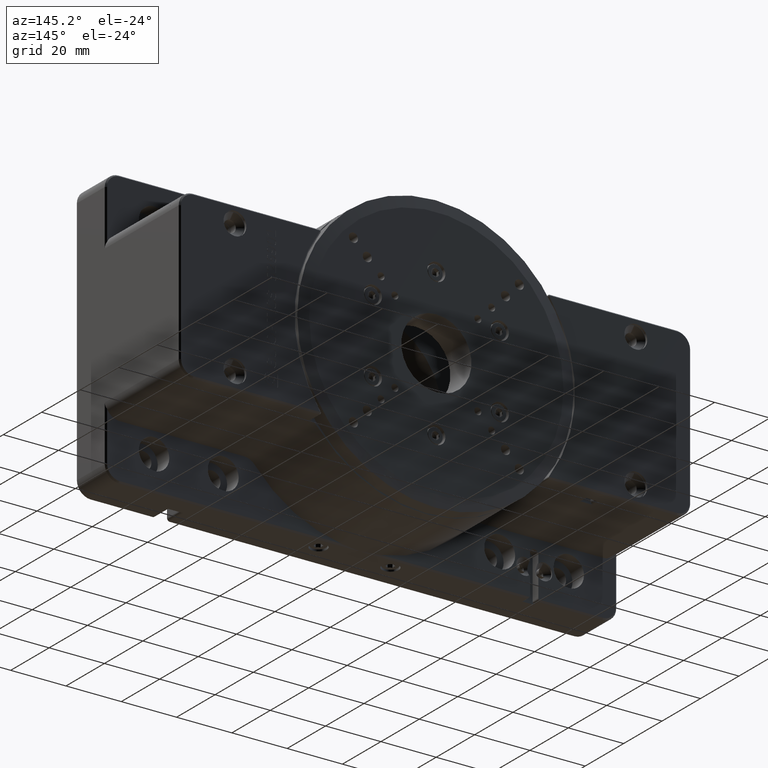
[diagram: clean part render]
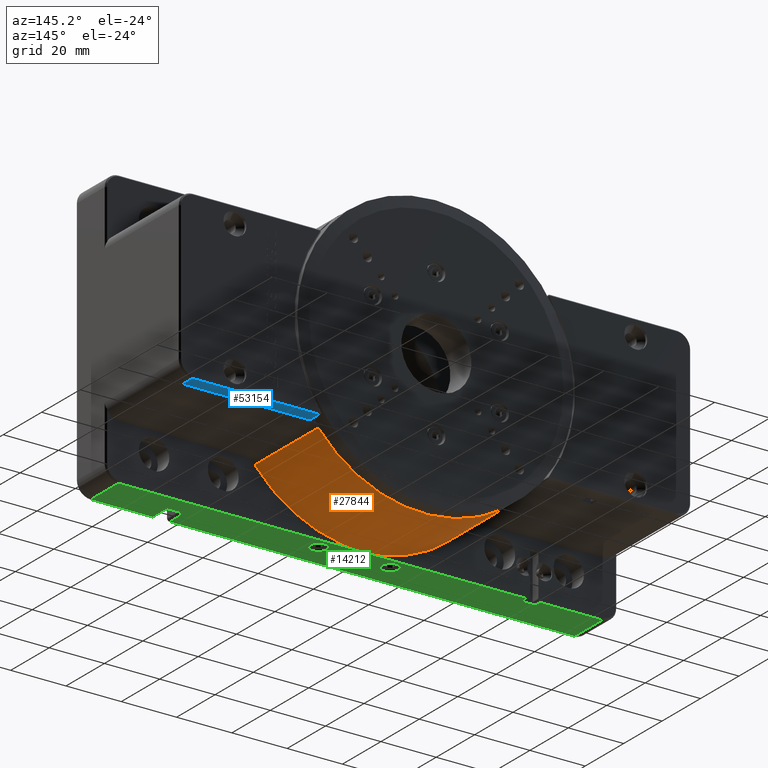
[diagram: same view with three faces highlighted in distinct colors, each labeled with its STEP entity id]
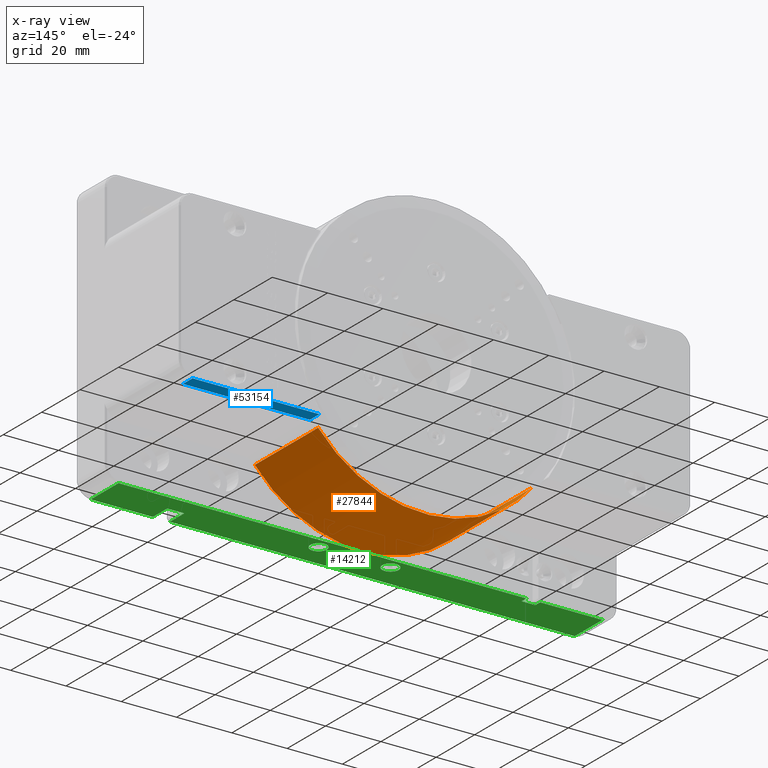
[diagram: x-ray of the same camera — body ghosted, the three highlighted faces saturated]
A machine part, auxiliary view with three faces highlighted in distinct colors.
The next image is the same camera in x-ray (body ghosted, the three faces saturated) — at least one of them is partly hidden behind the body in this view.
Their STEP definitions:

[orange] entity #27844 — the highlighted cylindrical surface (partial cylindrical patch) has radius 50 mm, axis along (0, 1, 0).
#1120 = CARTESIAN_POINT ( 'NONE',  ( -7.053367818820574600, -15.00000000161139500, -49.50000001289144100 ) ) ;
#1178 = CARTESIAN_POINT ( 'NONE',  ( -21.77756542581676400, -15.00000000000000200, -45.11353765567892500 ) ) ;
#2482 = CARTESIAN_POINT ( 'NONE',  ( 7.053367747179475300, -15.00000000094685900, -49.50000001535210700 ) ) ;
#2648 = CARTESIAN_POINT ( 'NONE',  ( 13.11374249056541600, -15.00000000000000200, -48.34794094492505700 ) ) ;
#2706 = CARTESIAN_POINT ( 'NONE',  ( 10.10373041385915200, -15.00000000000000500, -49.06534691049152700 ) ) ;
#2797 = CYLINDRICAL_SURFACE ( 'NONE', #34548, 50.00000000000000000 ) ;
#2938 = VERTEX_POINT ( 'NONE', #47820 ) ;
#3883 = CARTESIAN_POINT ( 'NONE',  ( 21.77756538834925900, -15.00000000000000000, -45.11353767417264000 ) ) ;
#4318 = CARTESIAN_POINT ( 'NONE',  ( 18.95071670219331100, -15.00000000000000200, -46.37201712451200600 ) ) ;
#5125 = ORIENTED_EDGE ( 'NONE', *, *, #53622, .T. ) ;
#5379 = CARTESIAN_POINT ( 'NONE',  ( 27.15186521882717600, -14.99999999999999800, -42.09833548801500300 ) ) ;
#7364 = EDGE_CURVE ( 'NONE', #47388, #2938, #21562, .T. ) ;
#7465 = CARTESIAN_POINT ( 'NONE',  ( 29.69921190702857700, -14.99999999999999500, -40.34167135635596000 ) ) ;
#7476 = CARTESIAN_POINT ( 'NONE',  ( -27.15186524374105300, -14.99999999999999800, -42.09833547151021100 ) ) ;
#7845 = CARTESIAN_POINT ( 'NONE',  ( 34.42768197065213800, -15.00000000000000000, -36.38994847276450200 ) ) ;
#8021 = EDGE_CURVE ( 'NONE', #42822, #38909, #32624, .T. ) ;
#8050 = CARTESIAN_POINT ( 'NONE',  ( 38.56946079199326500, -15.70100000000000100, -31.81818181818210800 ) ) ;
#8179 = EDGE_CURVE ( 'NONE', #12571, #30303, #32275, .T. ) ;
#8498 = EDGE_CURVE ( 'NONE', #42285, #38909, #12137, .T. ) ;
#8583 = EDGE_CURVE ( 'NONE', #47388, #42285, #10625, .T. ) ;
#10625 = B_SPLINE_CURVE_WITH_KNOTS ( 'NONE', 3,
 ( #16445, #17585, #15961, #15896 ),
 .UNSPECIFIED., .F., .F.,
 ( 4, 4 ),
 ( 0.0000000000000000000, 1.000000000000000000 ),
 .UNSPECIFIED. ) ;
#11920 = VECTOR ( 'NONE', #41366, 1000.000000000000000 ) ;
#12137 =( BOUNDED_CURVE ( )  B_SPLINE_CURVE ( 3, ( #23333, #23447, #22974, #22848 ),
 .UNSPECIFIED., .F., .F. ) 
 B_SPLINE_CURVE_WITH_KNOTS ( ( 4, 4 ),
 ( 3.141592653589793100, 3.283132122158338700 ),
 .UNSPECIFIED. ) 
 CURVE ( )  GEOMETRIC_REPRESENTATION_ITEM ( )  RATIONAL_B_SPLINE_CURVE ( ( 1.000000000000000000, 0.9983312448874306400, 0.9983312448874306400, 1.000000000000000000 ) ) 
 REPRESENTATION_ITEM ( '' )  );
#12571 = VERTEX_POINT ( 'NONE', #26274 ) ;
#12956 = ORIENTED_EDGE ( 'NONE', *, *, #52602, .T. ) ;
#13656 = CARTESIAN_POINT ( 'NONE',  ( 38.56946079199230600, -15.00000000000000000, -31.81818181818177400 ) ) ;
#15334 = CARTESIAN_POINT ( 'NONE',  ( -7.053367818820574600, -15.00000000161139500, -49.50000001289144100 ) ) ;
#15665 = ORIENTED_EDGE ( 'NONE', *, *, #8021, .T. ) ;
#15896 = CARTESIAN_POINT ( 'NONE',  ( 1.053589595528266400E-013, -15.49999711181266800, -49.99999919943383700 ) ) ;
#15961 = CARTESIAN_POINT ( 'NONE',  ( -2.362931512285347100, -15.50000000807218600, -50.00000000807219200 ) ) ;
#16445 = CARTESIAN_POINT ( 'NONE',  ( -7.053367818820574600, -15.00000000161139500, -49.50000001289144100 ) ) ;
#17165 = CARTESIAN_POINT ( 'NONE',  ( -34.42768197909296600, -15.00000000000000000, -36.38994846427413400 ) ) ;
#17538 = CARTESIAN_POINT ( 'NONE',  ( -10.10373047814950300, -15.00000000000000000, -49.06534689687827500 ) ) ;
#17585 = CARTESIAN_POINT ( 'NONE',  ( -4.714054118252729400, -15.33333414623585100, -49.83333414623585600 ) ) ;
#18111 = ORIENTED_EDGE ( 'NONE', *, *, #8498, .F. ) ;
#18498 = CARTESIAN_POINT ( 'NONE',  ( -13.11374254808527300, -15.00000000000000200, -48.34794092894368600 ) ) ;
#20311 = CARTESIAN_POINT ( 'NONE',  ( -38.56946079199198600, 18.00000000000001100, -31.81818181818167400 ) ) ;
#20740 = ORIENTED_EDGE ( 'NONE', *, *, #8583, .F. ) ;
#21089 = VECTOR ( 'NONE', #40964, 1000.000000000000000 ) ;
#21194 = CARTESIAN_POINT ( 'NONE',  ( 7.053367747179475300, -15.00000000094685900, -49.50000001535210700 ) ) ;
#21562 = B_SPLINE_CURVE_WITH_KNOTS ( 'NONE', 3,
 ( #1120, #17538, #18498, #51727, #1178, #7476, #22500, #17165, #25578, #33107 ),
 .UNSPECIFIED., .F., .F.,
 ( 4, 2, 2, 2, 4 ),
 ( 0.0000000000000000000, 0.2500000000000000000, 0.5000000000000000000, 0.7500000000000000000, 1.000000000000000000 ),
 .UNSPECIFIED. ) ;
#22500 = CARTESIAN_POINT ( 'NONE',  ( -29.69921192603022000, -15.00000000000000200, -40.34167134191187600 ) ) ;
#22848 = CARTESIAN_POINT ( 'NONE',  ( 7.053367747179475300, -15.00000000094685900, -49.50000001535210700 ) ) ;
#22974 = CARTESIAN_POINT ( 'NONE',  ( 4.716014983809657200, -15.33305475378183400, -49.83305475378184500 ) ) ;
#23333 = CARTESIAN_POINT ( 'NONE',  ( 1.053589595528266400E-013, -15.49999711181266800, -49.99999919943383700 ) ) ;
#23447 = CARTESIAN_POINT ( 'NONE',  ( 2.360962392952693700, -15.49999999999998600, -49.99999999999999300 ) ) ;
#25578 = CARTESIAN_POINT ( 'NONE',  ( -36.60871344624190700, -15.00000000000000200, -34.19496652282374100 ) ) ;
#26274 = CARTESIAN_POINT ( 'NONE',  ( 38.56946079199251200, 18.00000000000000700, -31.81818181818148300 ) ) ;
#26466 = FACE_OUTER_BOUND ( 'NONE', #36391, .T. ) ;
#26722 = ORIENTED_EDGE ( 'NONE', *, *, #7364, .T. ) ;
#27844 = ADVANCED_FACE ( 'NONE', ( #26466 ), #2797, .T. ) ;
#28215 = CARTESIAN_POINT ( 'NONE',  ( 38.56946079199230600, -15.00000000000000000, -31.81818181818177400 ) ) ;
#30303 = VERTEX_POINT ( 'NONE', #20311 ) ;
#32139 = LINE ( 'NONE', #53086, #21089 ) ;
#32275 = B_SPLINE_CURVE_WITH_KNOTS ( 'NONE', 3,
 ( #47118, #47172, #47234, #47048, #46989, #46933, #46869, #46813, #46701, #46645, #46536, #46481, #46191, #46023, #45836, #45778, #45653, #45592, #45484, #45433, #45314, #45258, #45139, #44898, #44786, #44601, #44439, #44381, #44265, #44210, #44099, #44038, #43919, #43850 ),
 .UNSPECIFIED., .F., .F.,
 ( 4, 2, 2, 2, 2, 2, 2, 2, 2, 2, 2, 2, 2, 2, 2, 2, 4 ),
 ( 0.0000000000000000000, 0.06249999999999991700, 0.1249999999999998300, 0.1874999999999999200, 0.2500000000000000000, 0.3125000000000000600, 0.3750000000000001100, 0.4375000000000001100, 0.5000000000000002200, 0.5625000000000002200, 0.6250000000000002200, 0.6875000000000003300, 0.7500000000000003300, 0.8125000000000003300, 0.8750000000000003300, 0.9375000000000002200, 1.000000000000000000 ),
 .UNSPECIFIED. ) ;
#32624 = B_SPLINE_CURVE_WITH_KNOTS ( 'NONE', 3,
 ( #13656, #34517, #7845, #7465, #5379, #3883, #4318, #2648, #2706, #2482 ),
 .UNSPECIFIED., .F., .F.,
 ( 4, 2, 2, 2, 4 ),
 ( 0.0000000000000000000, 0.2499999999999998300, 0.4999999999999998900, 0.7499999999999998900, 1.000000000000000000 ),
 .UNSPECIFIED. ) ;
#33107 = CARTESIAN_POINT ( 'NONE',  ( -38.56946079199228400, -15.00000000000000000, -31.81818181818132300 ) ) ;
#34159 = LINE ( 'NONE', #8050, #11920 ) ;
#34517 = CARTESIAN_POINT ( 'NONE',  ( 36.60871344244874600, -15.00000000000000200, -34.19496652742175500 ) ) ;
#34548 = AXIS2_PLACEMENT_3D ( 'NONE', #43022, #43739, #38885 ) ;
#36260 = ORIENTED_EDGE ( 'NONE', *, *, #8179, .F. ) ;
#36391 = EDGE_LOOP ( 'NONE', ( #26722, #5125, #36260, #12956, #15665, #18111, #20740 ) ) ;
#38885 = DIRECTION ( 'NONE',  ( 0.0000000000000000000, 0.0000000000000000000, 1.000000000000000000 ) ) ;
#38909 = VERTEX_POINT ( 'NONE', #21194 ) ;
#40964 = DIRECTION ( 'NONE',  ( 0.0000000000000000000, 1.000000000000000000, 0.0000000000000000000 ) ) ;
#41366 = DIRECTION ( 'NONE',  ( -0.0000000000000000000, -1.000000000000000000, -0.0000000000000000000 ) ) ;
#42285 = VERTEX_POINT ( 'NONE', #52213 ) ;
#42822 = VERTEX_POINT ( 'NONE', #28215 ) ;
#43022 = CARTESIAN_POINT ( 'NONE',  ( 0.0000000000000000000, -15.70100000000000100, 0.0000000000000000000 ) ) ;
#43739 = DIRECTION ( 'NONE',  ( 0.0000000000000000000, 1.000000000000000000, 0.0000000000000000000 ) ) ;
#43850 = CARTESIAN_POINT ( 'NONE',  ( -38.56946079199198600, 18.00000000000001100, -31.81818181818167400 ) ) ;
#43919 = CARTESIAN_POINT ( 'NONE',  ( -37.40132390745804300, 18.00000000000001400, -33.23417755373941400 ) ) ;
#44038 = CARTESIAN_POINT ( 'NONE',  ( -36.15770800773813000, 18.00000000000001400, -34.58284831553219600 ) ) ;
#44099 = CARTESIAN_POINT ( 'NONE',  ( -33.51951817792562600, 18.00000000000000700, -37.14553989158904600 ) ) ;
#44210 = CARTESIAN_POINT ( 'NONE',  ( -32.13495198543731100, 18.00000000000000700, -38.34989509450988300 ) ) ;
#44265 = CARTESIAN_POINT ( 'NONE',  ( -29.23722818974047000, 18.00000000000001100, -40.60234046944054100 ) ) ;
#44381 = CARTESIAN_POINT ( 'NONE',  ( -27.72842390711253900, 18.00000000000000700, -41.64717372268989900 ) ) ;
#44439 = CARTESIAN_POINT ( 'NONE',  ( -24.59438700710188300, 18.00000000000001100, -43.57137462070221500 ) ) ;
#44601 = CARTESIAN_POINT ( 'NONE',  ( -22.97998726188460600, 18.00000000000000700, -44.44423222771634100 ) ) ;
#44786 = CARTESIAN_POINT ( 'NONE',  ( -19.66015600923673600, 18.00000000000001100, -46.00917114561315900 ) ) ;
#44898 = CARTESIAN_POINT ( 'NONE',  ( -17.95952796974506400, 18.00000000000000700, -46.69912126114725500 ) ) ;
#45139 = CARTESIAN_POINT ( 'NONE',  ( -14.48080699373815200, 18.00000000000001100, -47.89211612993827300 ) ) ;
#45258 = CARTESIAN_POINT ( 'NONE',  ( -12.71470753054630300, 18.00000000000000700, -48.39117486981781700 ) ) ;
#45314 = CARTESIAN_POINT ( 'NONE',  ( -9.133171802092052300, 18.00000000000001100, -49.19299479241008300 ) ) ;
#45433 = CARTESIAN_POINT ( 'NONE',  ( -7.322888581778905800, 18.00000000000001400, -49.49472572182500600 ) ) ;
#45484 = CARTESIAN_POINT ( 'NONE',  ( -3.667563523527701500, 18.00000000000001100, -49.89887309741810400 ) ) ;
#45592 = CARTESIAN_POINT ( 'NONE',  ( -1.835096275378247800, 18.00000000000001400, -50.00002014527659400 ) ) ;
#45653 = CARTESIAN_POINT ( 'NONE',  ( 1.835096275378245600, 18.00000000000001400, -49.99997985472341400 ) ) ;
#45778 = CARTESIAN_POINT ( 'NONE',  ( 3.667567933731859900, 18.00000000000001400, -49.89891298325410000 ) ) ;
#45836 = CARTESIAN_POINT ( 'NONE',  ( 7.322884171574751000, 18.00000000000001100, -49.49468583598903800 ) ) ;
#46023 = CARTESIAN_POINT ( 'NONE',  ( 9.133180604402943100, 18.00000000000001400, -49.19303410965742500 ) ) ;
#46191 = CARTESIAN_POINT ( 'NONE',  ( 12.71469872823542800, 18.00000000000000700, -48.39113555257043900 ) ) ;
#46481 = CARTESIAN_POINT ( 'NONE',  ( 14.48082001163908200, 18.00000000000001100, -47.89215408864981100 ) ) ;
#46536 = CARTESIAN_POINT ( 'NONE',  ( 17.95951495184414500, 18.00000000000001100, -46.69908330243570300 ) ) ;
#46645 = CARTESIAN_POINT ( 'NONE',  ( 19.66017318920641400, 18.00000000000001400, -46.00920758976931800 ) ) ;
#46701 = CARTESIAN_POINT ( 'NONE',  ( 22.97997008191487500, 18.00000000000001400, -44.44419578356015400 ) ) ;
#46813 = CARTESIAN_POINT ( 'NONE',  ( 24.59440800393901900, 18.00000000000001400, -43.57140881811523800 ) ) ;
#46869 = CARTESIAN_POINT ( 'NONE',  ( 27.72840291027534900, 18.00000000000001100, -41.64713952527688400 ) ) ;
#46933 = CARTESIAN_POINT ( 'NONE',  ( 29.23725291694997400, 18.00000000000001400, -40.60237227968720200 ) ) ;
#46989 = CARTESIAN_POINT ( 'NONE',  ( 32.13492725822775500, 18.00000000000001100, -38.34986328426327900 ) ) ;
#47048 = CARTESIAN_POINT ( 'NONE',  ( 33.51967765604213400, 18.00000000000001100, -37.14544092205891700 ) ) ;
#47118 = CARTESIAN_POINT ( 'NONE',  ( 38.56946079199251200, 18.00000000000000700, -31.81818181818148300 ) ) ;
#47172 = CARTESIAN_POINT ( 'NONE',  ( 37.40155630461825400, 18.00000000000000400, -33.23389584583994600 ) ) ;
#47234 = CARTESIAN_POINT ( 'NONE',  ( 36.15754852962174900, 18.00000000000000700, -34.58294728506207600 ) ) ;
#47388 = VERTEX_POINT ( 'NONE', #15334 ) ;
#47820 = CARTESIAN_POINT ( 'NONE',  ( -38.56946079199228400, -15.00000000000000000, -31.81818181818132300 ) ) ;
#51727 = CARTESIAN_POINT ( 'NONE',  ( -18.95071674630116100, -15.00000000000000000, -46.37201710609048900 ) ) ;
#52213 = CARTESIAN_POINT ( 'NONE',  ( 1.053589595528266400E-013, -15.49999711181266800, -49.99999919943383700 ) ) ;
#52602 = EDGE_CURVE ( 'NONE', #12571, #42822, #34159, .T. ) ;
#53086 = CARTESIAN_POINT ( 'NONE',  ( -38.56946079199324400, -15.70100000000000100, -31.81818181818213300 ) ) ;
#53622 = EDGE_CURVE ( 'NONE', #2938, #30303, #32139, .T. ) ;

[blue] entity #53154 — the highlighted planar face has unit normal (0, 0, 1).
#1768 = ORIENTED_EDGE ( 'NONE', *, *, #38194, .T. ) ;
#2452 = ORIENTED_EDGE ( 'NONE', *, *, #12198, .F. ) ;
#3330 = VERTEX_POINT ( 'NONE', #44370 ) ;
#4123 = VERTEX_POINT ( 'NONE', #34689 ) ;
#5909 = FACE_OUTER_BOUND ( 'NONE', #14388, .T. ) ;
#12198 = EDGE_CURVE ( 'NONE', #4123, #28553, #29526, .T. ) ;
#14388 = EDGE_LOOP ( 'NONE', ( #37704, #2452, #1768, #39701 ) ) ;
#14687 = PLANE ( 'NONE',  #50857 ) ;
#15059 = DIRECTION ( 'NONE',  ( 1.000000000000000000, 0.0000000000000000000, -0.0000000000000000000 ) ) ;
#17200 = VECTOR ( 'NONE', #30963, 1000.000000000000000 ) ;
#17949 = CARTESIAN_POINT ( 'NONE',  ( 40.07355952263999700, 18.00000000000000700, -29.99999999999998900 ) ) ;
#18244 = CARTESIAN_POINT ( 'NONE',  ( 41.60228360870748800, 18.00000000000000700, -29.99999999999999300 ) ) ;
#20280 = VERTEX_POINT ( 'NONE', #18244 ) ;
#22055 = CARTESIAN_POINT ( 'NONE',  ( 41.60228362624499000, 17.68561545840000100, -30.00000000000000000 ) ) ;
#24311 = VECTOR ( 'NONE', #37838, 1000.000000000000000 ) ;
#26216 = DIRECTION ( 'NONE',  ( 0.0000000000000000000, -1.000000000000000000, -0.0000000000000000000 ) ) ;
#26800 = CARTESIAN_POINT ( 'NONE',  ( 40.68432926298999100, 23.00000000000000000, -30.00000000000000000 ) ) ;
#27037 = EDGE_CURVE ( 'NONE', #3330, #20280, #40494, .T. ) ;
#27424 = CARTESIAN_POINT ( 'NONE',  ( 87.50000000006376400, 23.00000000000000000, -29.99999999999999600 ) ) ;
#27816 = VECTOR ( 'NONE', #42785, 1000.000000000000000 ) ;
#28553 = VERTEX_POINT ( 'NONE', #27424 ) ;
#29526 = LINE ( 'NONE', #38074, #24311 ) ;
#30963 = DIRECTION ( 'NONE',  ( -1.000000000000000000, -0.0000000000000000000, 0.0000000000000000000 ) ) ;
#34689 = CARTESIAN_POINT ( 'NONE',  ( 87.50000000004251900, 18.00000000000000700, -29.99999999999999300 ) ) ;
#35813 = CARTESIAN_POINT ( 'NONE',  ( 40.68432926298999100, 17.68561545840000100, -30.00000000000000000 ) ) ;
#37704 = ORIENTED_EDGE ( 'NONE', *, *, #51312, .F. ) ;
#37838 = DIRECTION ( 'NONE',  ( -0.0000000000000000000, 1.000000000000000000, 0.0000000000000000000 ) ) ;
#38074 = CARTESIAN_POINT ( 'NONE',  ( 87.50000000008500900, 17.68561545840000100, -30.00000000000000000 ) ) ;
#38194 = EDGE_CURVE ( 'NONE', #4123, #20280, #50914, .T. ) ;
#39701 = ORIENTED_EDGE ( 'NONE', *, *, #27037, .F. ) ;
#39953 = VECTOR ( 'NONE', #26216, 1000.000000000000000 ) ;
#39956 = DIRECTION ( 'NONE',  ( 0.0000000000000000000, 0.0000000000000000000, 1.000000000000000000 ) ) ;
#40494 = LINE ( 'NONE', #22055, #39953 ) ;
#42785 = DIRECTION ( 'NONE',  ( -1.000000000000000000, -0.0000000000000000000, -0.0000000000000000000 ) ) ;
#44370 = CARTESIAN_POINT ( 'NONE',  ( 41.60228362624499000, 22.99999999999991500, -30.00000000000000000 ) ) ;
#50857 = AXIS2_PLACEMENT_3D ( 'NONE', #35813, #39956, #15059 ) ;
#50914 = LINE ( 'NONE', #17949, #27816 ) ;
#51312 = EDGE_CURVE ( 'NONE', #28553, #3330, #51409, .T. ) ;
#51409 = LINE ( 'NONE', #26800, #17200 ) ;
#53154 = ADVANCED_FACE ( 'NONE', ( #5909 ), #14687, .F. ) ;

[green] entity #14212 — the highlighted planar face has unit normal (0, 0, -1).
#484 = DIRECTION ( 'NONE',  ( 1.000000000000000000, 0.0000000000000000000, 0.0000000000000000000 ) ) ;
#526 = DIRECTION ( 'NONE',  ( -1.000000000000000000, 0.0000000000000000000, 0.0000000000000000000 ) ) ;
#1300 = VECTOR ( 'NONE', #36475, 1000.000000000000000 ) ;
#1313 = CARTESIAN_POINT ( 'NONE',  ( 58.89999999999999900, -30.29000000000000300, -50.00000000000000000 ) ) ;
#1581 = CARTESIAN_POINT ( 'NONE',  ( 91.00000000000000000, -15.49999999999999500, -50.00000000000000000 ) ) ;
#1765 = DIRECTION ( 'NONE',  ( 1.000000000000000000, 0.0000000000000000000, 0.0000000000000000000 ) ) ;
#2068 = DIRECTION ( 'NONE',  ( 0.0000000000000000000, 0.0000000000000000000, 1.000000000000000000 ) ) ;
#2589 = CIRCLE ( 'NONE', #5189, 2.999999999999999100 ) ;
#3053 = VERTEX_POINT ( 'NONE', #21727 ) ;
#3405 = VERTEX_POINT ( 'NONE', #34654 ) ;
#3882 = ORIENTED_EDGE ( 'NONE', *, *, #31857, .T. ) ;
#5131 = CARTESIAN_POINT ( 'NONE',  ( 91.00000000000000000, -18.00000000000000700, -50.00000000000000000 ) ) ;
#5189 = AXIS2_PLACEMENT_3D ( 'NONE', #28303, #28293, #28236 ) ;
#5308 = CIRCLE ( 'NONE', #53028, 3.000000000000000900 ) ;
#6588 = CARTESIAN_POINT ( 'NONE',  ( 91.00000000000000000, -22.50000000000000000, -50.00000000000000000 ) ) ;
#6733 = LINE ( 'NONE', #17831, #27765 ) ;
#6797 = ORIENTED_EDGE ( 'NONE', *, *, #27144, .T. ) ;
#7106 = LINE ( 'NONE', #6588, #49974 ) ;
#7213 = LINE ( 'NONE', #17734, #39182 ) ;
#7450 = CARTESIAN_POINT ( 'NONE',  ( -11.00000000000000000, -20.04999999999999700, -50.00000000000000000 ) ) ;
#7625 = FACE_BOUND ( 'NONE', #16824, .T. ) ;
#7693 = CARTESIAN_POINT ( 'NONE',  ( 91.00000000000000000, -15.49999999999993800, -50.00000000000000000 ) ) ;
#7863 = CARTESIAN_POINT ( 'NONE',  ( 9.000000000000001800, -20.04999999999999700, -50.00000000000000000 ) ) ;
#8078 = VECTOR ( 'NONE', #526, 1000.000000000000000 ) ;
#8310 = LINE ( 'NONE', #43678, #18173 ) ;
#8631 = CARTESIAN_POINT ( 'NONE',  ( 58.89999999999999900, -22.50000000000000000, -50.00000000000000000 ) ) ;
#9353 = ORIENTED_EDGE ( 'NONE', *, *, #28574, .T. ) ;
#9921 = CIRCLE ( 'NONE', #21715, 2.999999999999999100 ) ;
#10429 = VERTEX_POINT ( 'NONE', #24503 ) ;
#10516 = CARTESIAN_POINT ( 'NONE',  ( -65.00000000000000000, -18.00000000000000700, -50.00000000000000000 ) ) ;
#10828 = VERTEX_POINT ( 'NONE', #11596 ) ;
#11596 = CARTESIAN_POINT ( 'NONE',  ( 87.49999996700729800, -29.99997896490088000, -50.00001592907969400 ) ) ;
#11938 = VERTEX_POINT ( 'NONE', #46796 ) ;
#12488 = EDGE_CURVE ( 'NONE', #36783, #52216, #2589, .T. ) ;
#14212 = ADVANCED_FACE ( 'NONE', ( #17522, #21523, #7625 ), #26153, .T. ) ;
#14343 = EDGE_CURVE ( 'NONE', #50850, #49406, #14883, .T. ) ;
#14573 = LINE ( 'NONE', #5131, #46348 ) ;
#14883 = CIRCLE ( 'NONE', #40482, 3.000000000000000900 ) ;
#15855 = LINE ( 'NONE', #43333, #37954 ) ;
#16081 = CARTESIAN_POINT ( 'NONE',  ( -60.00000000000000700, -15.49999999999994100, -49.99999999999998600 ) ) ;
#16824 = EDGE_LOOP ( 'NONE', ( #23954, #6797 ) ) ;
#16874 = CARTESIAN_POINT ( 'NONE',  ( -65.00000000000001400, -15.49999999999994500, -49.99999999999998600 ) ) ;
#17522 = FACE_OUTER_BOUND ( 'NONE', #22759, .T. ) ;
#17734 = CARTESIAN_POINT ( 'NONE',  ( 91.00000000000000000, -30.00000000000001100, -50.00000000000000000 ) ) ;
#17831 = CARTESIAN_POINT ( 'NONE',  ( -87.50000003285890700, -30.29000000000000300, -50.00000000000000000 ) ) ;
#17896 = DIRECTION ( 'NONE',  ( 0.0000000000000000000, 0.0000000000000000000, -1.000000000000000000 ) ) ;
#18173 = VECTOR ( 'NONE', #47789, 1000.000000000000000 ) ;
#18196 = VERTEX_POINT ( 'NONE', #8631 ) ;
#18524 = DIRECTION ( 'NONE',  ( 0.0000000000000000000, 0.0000000000000000000, 1.000000000000000000 ) ) ;
#19296 = ORIENTED_EDGE ( 'NONE', *, *, #29385, .T. ) ;
#19299 = LINE ( 'NONE', #21585, #8078 ) ;
#19808 = DIRECTION ( 'NONE',  ( -0.0000000000000000000, -0.0000000000000000000, 1.000000000000000000 ) ) ;
#20090 = ORIENTED_EDGE ( 'NONE', *, *, #29523, .T. ) ;
#20416 = LINE ( 'NONE', #40926, #30146 ) ;
#20549 = CARTESIAN_POINT ( 'NONE',  ( 87.49999997925340300, -30.29000000000000300, -50.00000000000000000 ) ) ;
#21523 = FACE_BOUND ( 'NONE', #22039, .T. ) ;
#21585 = CARTESIAN_POINT ( 'NONE',  ( 91.00000000000000000, -30.00000000000001100, -50.00000000000000000 ) ) ;
#21715 = AXIS2_PLACEMENT_3D ( 'NONE', #44576, #19808, #48666 ) ;
#21727 = CARTESIAN_POINT ( 'NONE',  ( -70.00000000000027000, -30.00000000000000700, -50.00000037045556000 ) ) ;
#21930 = DIRECTION ( 'NONE',  ( 1.000000000000000000, 0.0000000000000000000, 0.0000000000000000000 ) ) ;
#22039 = EDGE_LOOP ( 'NONE', ( #23255, #42927 ) ) ;
#22093 = DIRECTION ( 'NONE',  ( 0.0000000000000000000, 1.000000000000000000, 0.0000000000000000000 ) ) ;
#22759 = EDGE_LOOP ( 'NONE', ( #3882, #53026, #26377, #26850, #29324, #9353, #30507, #19296, #46662, #20090, #23666, #29623, #49284, #30837, #44616 ) ) ;
#23080 = VECTOR ( 'NONE', #49251, 1000.000000000000000 ) ;
#23190 = VECTOR ( 'NONE', #1765, 1000.000000000000000 ) ;
#23255 = ORIENTED_EDGE ( 'NONE', *, *, #12488, .T. ) ;
#23666 = ORIENTED_EDGE ( 'NONE', *, *, #29852, .T. ) ;
#23930 = VERTEX_POINT ( 'NONE', #48868 ) ;
#23954 = ORIENTED_EDGE ( 'NONE', *, *, #14343, .T. ) ;
#24200 = VERTEX_POINT ( 'NONE', #38459 ) ;
#24503 = CARTESIAN_POINT ( 'NONE',  ( 70.00000000000000000, -30.00000000000000400, -50.00000000000000000 ) ) ;
#25517 = VERTEX_POINT ( 'NONE', #16081 ) ;
#26153 = PLANE ( 'NONE',  #36001 ) ;
#26377 = ORIENTED_EDGE ( 'NONE', *, *, #27705, .T. ) ;
#26850 = ORIENTED_EDGE ( 'NONE', *, *, #27783, .T. ) ;
#27144 = EDGE_CURVE ( 'NONE', #49406, #50850, #5308, .T. ) ;
#27216 = CARTESIAN_POINT ( 'NONE',  ( -14.00000000000000000, -20.04999999999999700, -50.00000000000000000 ) ) ;
#27325 = EDGE_CURVE ( 'NONE', #52216, #36783, #9921, .T. ) ;
#27705 = EDGE_CURVE ( 'NONE', #3053, #36585, #19299, .T. ) ;
#27765 = VECTOR ( 'NONE', #22093, 1000.000000000000000 ) ;
#27783 = EDGE_CURVE ( 'NONE', #36585, #23930, #6733, .T. ) ;
#28236 = DIRECTION ( 'NONE',  ( -1.000000000000000000, 0.0000000000000000000, 0.0000000000000000000 ) ) ;
#28248 = EDGE_CURVE ( 'NONE', #23930, #50618, #45132, .T. ) ;
#28293 = DIRECTION ( 'NONE',  ( -0.0000000000000000000, -0.0000000000000000000, 1.000000000000000000 ) ) ;
#28303 = CARTESIAN_POINT ( 'NONE',  ( 12.00000000000000000, -20.04999999999999700, -50.00000000000000000 ) ) ;
#28574 = EDGE_CURVE ( 'NONE', #50618, #45271, #48301, .T. ) ;
#28889 = EDGE_CURVE ( 'NONE', #45271, #49625, #14573, .T. ) ;
#29324 = ORIENTED_EDGE ( 'NONE', *, *, #28248, .T. ) ;
#29385 = EDGE_CURVE ( 'NONE', #49625, #25517, #15855, .T. ) ;
#29443 = EDGE_CURVE ( 'NONE', #25517, #42285, #34120, .T. ) ;
#29523 = EDGE_CURVE ( 'NONE', #42285, #51863, #31531, .T. ) ;
#29623 = ORIENTED_EDGE ( 'NONE', *, *, #29994, .T. ) ;
#29769 = CARTESIAN_POINT ( 'NONE',  ( 87.49999998441283800, -15.49999536100880900, -50.00002911727421700 ) ) ;
#29852 = EDGE_CURVE ( 'NONE', #51863, #10828, #43070, .T. ) ;
#29994 = EDGE_CURVE ( 'NONE', #10828, #10429, #7213, .T. ) ;
#30146 = VECTOR ( 'NONE', #45053, 1000.000000000000000 ) ;
#30306 = EDGE_CURVE ( 'NONE', #11938, #24200, #20416, .T. ) ;
#30507 = ORIENTED_EDGE ( 'NONE', *, *, #28889, .T. ) ;
#30664 = DIRECTION ( 'NONE',  ( -0.0000000000000000000, -1.000000000000000000, -0.0000000000000000000 ) ) ;
#30837 = ORIENTED_EDGE ( 'NONE', *, *, #30306, .T. ) ;
#31229 = VECTOR ( 'NONE', #21930, 1000.000000000000000 ) ;
#31368 = EDGE_CURVE ( 'NONE', #24200, #18196, #7106, .T. ) ;
#31405 = DIRECTION ( 'NONE',  ( -1.000000000000000000, 0.0000000000000000000, 0.0000000000000000000 ) ) ;
#31531 = LINE ( 'NONE', #50294, #41166 ) ;
#31857 = EDGE_CURVE ( 'NONE', #18196, #3405, #51274, .T. ) ;
#34120 = LINE ( 'NONE', #7693, #23080 ) ;
#34448 = DIRECTION ( 'NONE',  ( 1.000000000000000000, -0.0000000000000000000, 0.0000000000000000000 ) ) ;
#34654 = CARTESIAN_POINT ( 'NONE',  ( 58.89999999999999100, -30.00000000000000000, -50.00000000000000000 ) ) ;
#36001 = AXIS2_PLACEMENT_3D ( 'NONE', #42737, #17896, #46833 ) ;
#36475 = DIRECTION ( 'NONE',  ( -0.0000000000000000000, -1.000000000000000000, -0.0000000000000000000 ) ) ;
#36585 = VERTEX_POINT ( 'NONE', #39975 ) ;
#36783 = VERTEX_POINT ( 'NONE', #7863 ) ;
#37954 = VECTOR ( 'NONE', #51499, 1000.000000000000000 ) ;
#38459 = CARTESIAN_POINT ( 'NONE',  ( 65.09999999999999400, -22.50000000000000000, -50.00000000000000000 ) ) ;
#39141 = VECTOR ( 'NONE', #30664, 1000.000000000000000 ) ;
#39182 = VECTOR ( 'NONE', #42577, 1000.000000000000000 ) ;
#39975 = CARTESIAN_POINT ( 'NONE',  ( -87.50000002118831300, -29.99997821506640600, -50.00001552254069300 ) ) ;
#40482 = AXIS2_PLACEMENT_3D ( 'NONE', #27216, #2068, #31405 ) ;
#40926 = CARTESIAN_POINT ( 'NONE',  ( 65.09999999999999400, -30.29000000000000300, -50.00000000000000000 ) ) ;
#41166 = VECTOR ( 'NONE', #484, 1000.000000000000000 ) ;
#42247 = EDGE_CURVE ( 'NONE', #3053, #3405, #8310, .T. ) ;
#42285 = VERTEX_POINT ( 'NONE', #52213 ) ;
#42488 = EDGE_CURVE ( 'NONE', #11938, #10429, #52989, .T. ) ;
#42577 = DIRECTION ( 'NONE',  ( -1.000000000000000000, 0.0000000000000000000, 0.0000000000000000000 ) ) ;
#42737 = CARTESIAN_POINT ( 'NONE',  ( 91.00000000000000000, -30.29000000000000300, -50.00000000000000000 ) ) ;
#42927 = ORIENTED_EDGE ( 'NONE', *, *, #27325, .T. ) ;
#43070 = LINE ( 'NONE', #20549, #1300 ) ;
#43333 = CARTESIAN_POINT ( 'NONE',  ( -60.00000000000000000, -30.29000000000000300, -50.00000000000000000 ) ) ;
#43343 = CARTESIAN_POINT ( 'NONE',  ( -14.00000000000000000, -20.04999999999999700, -50.00000000000000000 ) ) ;
#43678 = CARTESIAN_POINT ( 'NONE',  ( -96.19999999999998900, -30.00000000000000000, -50.00000000000000000 ) ) ;
#44013 = CARTESIAN_POINT ( 'NONE',  ( -65.00000000000000000, -30.29000000000000300, -50.00000000000000000 ) ) ;
#44134 = DIRECTION ( 'NONE',  ( -1.000000000000000000, 0.0000000000000000000, -0.0000000000000000000 ) ) ;
#44345 = CARTESIAN_POINT ( 'NONE',  ( 15.00000000000000000, -20.04999999999999700, -50.00000000000000000 ) ) ;
#44576 = CARTESIAN_POINT ( 'NONE',  ( 12.00000000000000000, -20.04999999999999700, -50.00000000000000000 ) ) ;
#44616 = ORIENTED_EDGE ( 'NONE', *, *, #31368, .T. ) ;
#45053 = DIRECTION ( 'NONE',  ( 0.0000000000000000000, 1.000000000000000000, 0.0000000000000000000 ) ) ;
#45132 = LINE ( 'NONE', #1581, #23190 ) ;
#45271 = VERTEX_POINT ( 'NONE', #10516 ) ;
#45748 = VECTOR ( 'NONE', #48101, 1000.000000000000000 ) ;
#45984 = CARTESIAN_POINT ( 'NONE',  ( -60.00000000000000000, -18.00000000000000700, -50.00000000000000000 ) ) ;
#46348 = VECTOR ( 'NONE', #34448, 1000.000000000000000 ) ;
#46607 = CARTESIAN_POINT ( 'NONE',  ( -96.19999999999998900, -30.00000000000000000, -50.00000000000000000 ) ) ;
#46662 = ORIENTED_EDGE ( 'NONE', *, *, #29443, .T. ) ;
#46796 = CARTESIAN_POINT ( 'NONE',  ( 65.09999999999999400, -30.00000000000000000, -50.00000000000000000 ) ) ;
#46833 = DIRECTION ( 'NONE',  ( -1.000000000000000000, 0.0000000000000000000, -0.0000000000000000000 ) ) ;
#47443 = DIRECTION ( 'NONE',  ( -1.000000000000000000, 0.0000000000000000000, 0.0000000000000000000 ) ) ;
#47789 = DIRECTION ( 'NONE',  ( 1.000000000000000000, 0.0000000000000000000, 0.0000000000000000000 ) ) ;
#48101 = DIRECTION ( 'NONE',  ( -0.0000000000000000000, -1.000000000000000000, -0.0000000000000000000 ) ) ;
#48301 = LINE ( 'NONE', #44013, #45748 ) ;
#48666 = DIRECTION ( 'NONE',  ( -1.000000000000000000, 0.0000000000000000000, 0.0000000000000000000 ) ) ;
#48868 = CARTESIAN_POINT ( 'NONE',  ( -87.50000002190681400, -15.50002151094029500, -50.00001547893710800 ) ) ;
#49251 = DIRECTION ( 'NONE',  ( 1.000000000000000000, -0.0000000000000000000, 0.0000000000000000000 ) ) ;
#49284 = ORIENTED_EDGE ( 'NONE', *, *, #42488, .F. ) ;
#49406 = VERTEX_POINT ( 'NONE', #7450 ) ;
#49625 = VERTEX_POINT ( 'NONE', #45984 ) ;
#49974 = VECTOR ( 'NONE', #44134, 1000.000000000000000 ) ;
#50294 = CARTESIAN_POINT ( 'NONE',  ( 91.00000000000000000, -15.49999999999999500, -50.00000000000000000 ) ) ;
#50618 = VERTEX_POINT ( 'NONE', #16874 ) ;
#50850 = VERTEX_POINT ( 'NONE', #52838 ) ;
#51274 = LINE ( 'NONE', #1313, #39141 ) ;
#51499 = DIRECTION ( 'NONE',  ( 0.0000000000000000000, 1.000000000000000000, 0.0000000000000000000 ) ) ;
#51863 = VERTEX_POINT ( 'NONE', #29769 ) ;
#52213 = CARTESIAN_POINT ( 'NONE',  ( 1.053589595528266400E-013, -15.49999711181266800, -49.99999919943383700 ) ) ;
#52216 = VERTEX_POINT ( 'NONE', #44345 ) ;
#52838 = CARTESIAN_POINT ( 'NONE',  ( -17.00000000000000000, -20.04999999999999700, -50.00000000000000000 ) ) ;
#52989 = LINE ( 'NONE', #46607, #31229 ) ;
#53026 = ORIENTED_EDGE ( 'NONE', *, *, #42247, .F. ) ;
#53028 = AXIS2_PLACEMENT_3D ( 'NONE', #43343, #18524, #47443 ) ;